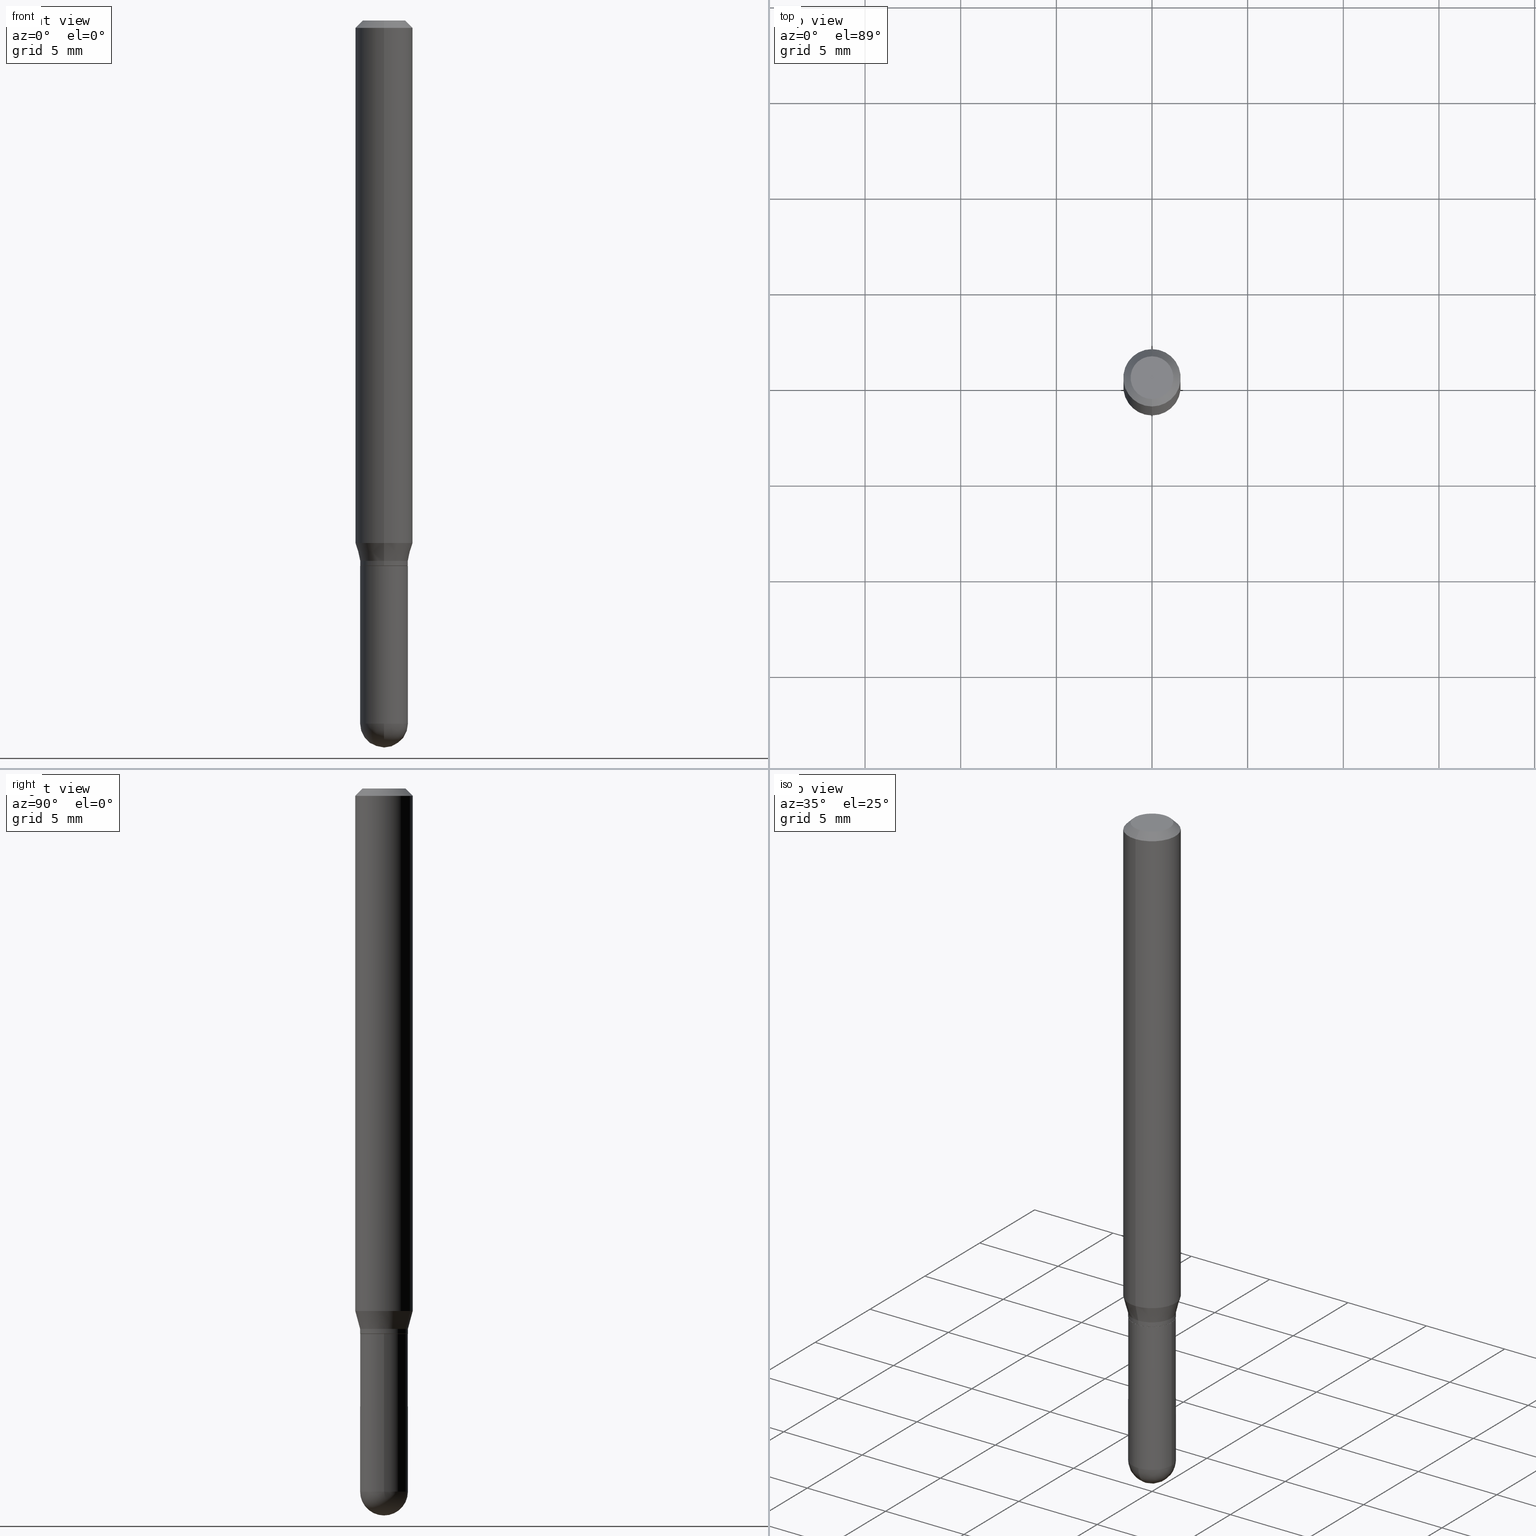
[diagram: canonical four-view strip — front | top / right | iso, engineering-drawing reading convention]
A machine part, canonical four-view strip (front | top / right | iso — engineering-drawing reading convention). The complete STEP part file that produces these views, byte-faithful:
ISO-10303-21;
HEADER;
FILE_DESCRIPTION (( 'STEP AP203' ),
    '1' );
FILE_NAME ('40318.STEP',
    '2024-03-08T12:58:22',
    ( '' ),
    ( '' ),
    'SwSTEP 2.0',
    'SolidWorks 2023',
    '' );
FILE_SCHEMA (( 'CONFIG_CONTROL_DESIGN' ));
ENDSEC;

DATA;
#1 = ORIENTED_EDGE ( 'NONE', *, *, #187, .F. ) ;
#2 = ORIENTED_EDGE ( 'NONE', *, *, #4, .T. ) ;
#3 = ORIENTED_EDGE ( 'NONE', *, *, #192, .F. ) ;
#4 = EDGE_CURVE ( 'NONE', #374, #35, #450, .T. ) ;
#5 = CONICAL_SURFACE ( 'NONE', #440, 0.04920000000000020191, 0.2617993877991497964 ) ;
#6 = DIRECTION ( 'NONE',  ( -6.982962677686265922E-15, -1.000000000000000000, 5.552536572488332275E-15 ) ) ;
#7 = CARTESIAN_POINT ( 'NONE',  ( 4.195754854663657226E-16, 0.05904999999999996363, -0.01500000000000016945 ) ) ;
#8 = DIRECTION ( 'NONE',  ( -2.445597689744413996E-29, 3.491296770250663651E-15, 1.000000000000000000 ) ) ;
#9 = EDGE_CURVE ( 'NONE', #389, #465, #79, .T. ) ;
#10 = CARTESIAN_POINT ( 'NONE',  ( 2.719749190764762494E-29, -3.882671138195762531E-15, -1.112099999999999866 ) ) ;
#11 = PERSON_AND_ORGANIZATION_ROLE ( 'creator' ) ;
#12 = AXIS2_PLACEMENT_3D ( 'NONE', #121, #85, #6 ) ;
#13 = CARTESIAN_POINT ( 'NONE',  ( 3.495870259940048443E-16, 0.04919999999999498386, -1.446900000000000075 ) ) ;
#14 = CIRCLE ( 'NONE', #370, 0.05904999999999999832 ) ;
#15 = ADVANCED_FACE ( 'NONE', ( #469 ), #345, .T. ) ;
#16 = DIRECTION ( 'NONE',  ( -2.445597689744413996E-29, 3.491296770250663651E-15, 1.000000000000000000 ) ) ;
#17 = CIRCLE ( 'NONE', #277, 0.04920000000000000068 ) ;
#18 =( GEOMETRIC_REPRESENTATION_CONTEXT ( 3 ) GLOBAL_UNCERTAINTY_ASSIGNED_CONTEXT ( ( #455 ) ) GLOBAL_UNIT_ASSIGNED_CONTEXT ( ( #367, #105, #205 ) ) REPRESENTATION_CONTEXT ( 'NONE', 'WORKASPACE' ) );
#19 = DIRECTION ( 'NONE',  ( -2.445468806185136597E-29, 3.491481338843145583E-15, 1.000000000000000000 ) ) ;
#20 = LINE ( 'NONE', #282, #357 ) ;
#21 = APPLICATION_CONTEXT ( 'configuration controlled 3d designs of mechanical parts and assemblies' ) ;
#22 = EDGE_CURVE ( 'NONE', #445, #223, #209, .T. ) ;
#23 = COORDINATED_UNIVERSAL_TIME_OFFSET ( 5, 0, .BEHIND. ) ;
#24 = CARTESIAN_POINT ( 'NONE',  ( 2.719749190764762494E-29, -3.882671138195762531E-15, -1.112099999999999866 ) ) ;
#25 = CLOSED_SHELL ( 'NONE', ( #394, #242, #504, #95, #42 ) ) ;
#26 = AXIS2_PLACEMENT_3D ( 'NONE', #24, #241, #122 ) ;
#27 = EDGE_CURVE ( 'NONE', #35, #374, #14, .T. ) ;
#28 = ORIENTED_EDGE ( 'NONE', *, *, #163, .F. ) ;
#29 = CARTESIAN_POINT ( 'NONE',  ( 0.000000000000000000, 0.000000000000000000, 0.000000000000000000 ) ) ;
#30 = ORIENTED_EDGE ( 'NONE', *, *, #202, .T. ) ;
#31 = ORIENTED_EDGE ( 'NONE', *, *, #484, .F. ) ;
#32 = CYLINDRICAL_SURFACE ( 'NONE', #439, 0.04920000000000000068 ) ;
#33 = DIRECTION ( 'NONE',  ( -1.000000000000000000, 6.982962677686265922E-15, -4.876176775795935793E-29 ) ) ;
#34 = CC_DESIGN_APPROVAL ( #412, ( #182 ) ) ;
#35 = VERTEX_POINT ( 'NONE', #190 ) ;
#36 = CIRCLE ( 'NONE', #379, 0.04920000000000020191 ) ;
#37 = DIRECTION ( 'NONE',  ( -2.445468806185136877E-29, 3.491481338843145188E-15, 1.000000000000000000 ) ) ;
#38 = DATE_TIME_ROLE ( 'creation_date' ) ;
#39 = ORIENTED_EDGE ( 'NONE', *, *, #434, .F. ) ;
#40 = VERTEX_POINT ( 'NONE', #350 ) ;
#41 = VERTEX_POINT ( 'NONE', #7 ) ;
#42 = ADVANCED_FACE ( 'NONE', ( #150 ), #275, .T. ) ;
#43 = DIRECTION ( 'NONE',  ( -2.445597689744413996E-29, 3.491296770250663651E-15, 1.000000000000000000 ) ) ;
#44 = DIRECTION ( 'NONE',  ( -6.982962677686265922E-15, -1.000000000000000000, 4.626330217890369336E-15 ) ) ;
#45 = VECTOR ( 'NONE', #487, 39.37007874015748143 ) ;
#46 = CC_DESIGN_PERSON_AND_ORGANIZATION_ASSIGNMENT ( #475, #87, ( #451 ) ) ;
#47 = DIRECTION ( 'NONE',  ( -6.982962677686266711E-15, -1.000000000000000000, 2.804772067417108113E-15 ) ) ;
#48 = DATE_AND_TIME ( #387, #404 ) ;
#49 = DIRECTION ( 'NONE',  ( -2.445597689744414276E-29, 3.491296770250663257E-15, 1.000000000000000000 ) ) ;
#50 = DIRECTION ( 'NONE',  ( -2.445597689744414276E-29, 3.491296770250663257E-15, 1.000000000000000000 ) ) ;
#51 = DIRECTION ( 'NONE',  ( -4.851104656540965064E-15, -0.7071067811865501263, -0.7071067811865449082 ) ) ;
#52 = CIRCLE ( 'NONE', #26, 0.04920000000000020191 ) ;
#53 = DATE_AND_TIME ( #89, #318 ) ;
#54 = CALENDAR_DATE ( 2024, 8, 3 ) ;
#55 = SHAPE_DEFINITION_REPRESENTATION ( #107, #410 ) ;
#56 = CYLINDRICAL_SURFACE ( 'NONE', #314, 0.04920000000000013946 ) ;
#57 = VECTOR ( 'NONE', #133, 39.37007874015748143 ) ;
#58 = DATE_AND_TIME ( #54, #297 ) ;
#59 = FACE_OUTER_BOUND ( 'NONE', #265, .T. ) ;
#60 = LINE ( 'NONE', #322, #471 ) ;
#61 = DIRECTION ( 'NONE',  ( -6.982962677686265922E-15, -1.000000000000000000, 3.491296770250664046E-15 ) ) ;
#62 = EDGE_CURVE ( 'NONE', #40, #269, #252, .T. ) ;
#63 = CIRCLE ( 'NONE', #114, 0.04870000000000000023 ) ;
#64 = LINE ( 'NONE', #338, #362 ) ;
#65 = LINE ( 'NONE', #177, #393 ) ;
#66 = ORIENTED_EDGE ( 'NONE', *, *, #128, .T. ) ;
#67 = ORIENTED_EDGE ( 'NONE', *, *, #366, .F. ) ;
#68 = ADVANCED_FACE ( 'NONE', ( #169 ), #268, .T. ) ;
#69 = ORIENTED_EDGE ( 'NONE', *, *, #490, .T. ) ;
#70 = EDGE_LOOP ( 'NONE', ( #226, #326, #303, #181 ) ) ;
#71 = FACE_OUTER_BOUND ( 'NONE', #453, .T. ) ;
#72 = PERSON_AND_ORGANIZATION ( #194, #348 ) ;
#73 = ORIENTED_EDGE ( 'NONE', *, *, #92, .F. ) ;
#74 = LOCAL_TIME ( 7, 58, 22.00000000000000000, #23 ) ;
#75 = ORIENTED_EDGE ( 'NONE', *, *, #211, .T. ) ;
#76 = AXIS2_PLACEMENT_3D ( 'NONE', #151, #43, #274 ) ;
#77 = EDGE_LOOP ( 'NONE', ( #28, #328, #134, #189 ) ) ;
#78 = VERTEX_POINT ( 'NONE', #135 ) ;
#79 = LINE ( 'NONE', #113, #99 ) ;
#80 = EDGE_CURVE ( 'NONE', #333, #465, #17, .T. ) ;
#81 = AXIS2_PLACEMENT_3D ( 'NONE', #171, #507, #98 ) ;
#82 = APPROVAL_PERSON_ORGANIZATION ( #281, #247, #244 ) ;
#83 = FACE_OUTER_BOUND ( 'NONE', #272, .T. ) ;
#84 = EDGE_CURVE ( 'NONE', #35, #108, #20, .T. ) ;
#85 = DIRECTION ( 'NONE',  ( 1.000000000000000000, -6.982962677686265922E-15, 4.883557194083112340E-29 ) ) ;
#86 = CARTESIAN_POINT ( 'NONE',  ( 2.742982368817334401E-29, -3.915838457513144026E-15, -1.121599999999999930 ) ) ;
#87 = PERSON_AND_ORGANIZATION_ROLE ( 'design_supplier' ) ;
#88 = CARTESIAN_POINT ( 'NONE',  ( -3.435617637421385410E-16, -0.04920000000000408769, -1.112099999999999644 ) ) ;
#89 = CALENDAR_DATE ( 2024, 8, 3 ) ;
#90 = AXIS2_PLACEMENT_3D ( 'NONE', #346, #478, #472 ) ;
#91 = CARTESIAN_POINT ( 'NONE',  ( 2.744205167662206488E-29, -3.917584105898268911E-15, -1.122099999999999875 ) ) ;
#92 = EDGE_CURVE ( 'NONE', #215, #501, #52, .T. ) ;
#93 = CARTESIAN_POINT ( 'NONE',  ( 2.742982368817334401E-29, -3.915838457513144026E-15, -1.121599999999999930 ) ) ;
#94 = AXIS2_PLACEMENT_3D ( 'NONE', #155, #8, #276 ) ;
#95 = ADVANCED_FACE ( 'NONE', ( #438 ), #483, .T. ) ;
#96 = CYLINDRICAL_SURFACE ( 'NONE', #400, 0.05905000000000000526 ) ;
#97 = DIRECTION ( 'NONE',  ( -2.445468806185136597E-29, 3.491481338843145583E-15, 1.000000000000000000 ) ) ;
#98 = DIRECTION ( 'NONE',  ( 6.982962677686265922E-15, 1.000000000000000000, -3.505890868245044514E-15 ) ) ;
#99 = VECTOR ( 'NONE', #426, 39.37007874015748143 ) ;
#100 = AXIS2_PLACEMENT_3D ( 'NONE', #291, #243, #485 ) ;
#101 = AXIS2_PLACEMENT_3D ( 'NONE', #221, #382, #408 ) ;
#102 = ORIENTED_EDGE ( 'NONE', *, *, #22, .T. ) ;
#103 = EDGE_LOOP ( 'NONE', ( #390, #69, #468, #372 ) ) ;
#104 = ORIENTED_EDGE ( 'NONE', *, *, #62, .T. ) ;
#105 =( NAMED_UNIT ( * ) PLANE_ANGLE_UNIT ( ) SI_UNIT ( $, .RADIAN. ) );
#106 = DIRECTION ( 'NONE',  ( -6.982962677686265133E-15, -1.000000000000000000, 3.491296770250663257E-15 ) ) ;
#107 = PRODUCT_DEFINITION_SHAPE ( 'NONE', 'NONE',  #182 ) ;
#108 = VERTEX_POINT ( 'NONE', #197 ) ;
#109 = APPROVAL_ROLE ( '' ) ;
#110 = ADVANCED_FACE ( 'NONE', ( #319 ), #437, .F. ) ;
#111 = ORIENTED_EDGE ( 'NONE', *, *, #500, .T. ) ;
#112 = LINE ( 'NONE', #360, #253 ) ;
#113 = CARTESIAN_POINT ( 'NONE',  ( 0.04920000000000000068, -3.435617637421643269E-16, 2.399078973691600472E-30 ) ) ;
#114 = AXIS2_PLACEMENT_3D ( 'NONE', #232, #395, #47 ) ;
#115 = COORDINATED_UNIVERSAL_TIME_OFFSET ( 5, 0, .BEHIND. ) ;
#116 = CC_DESIGN_DATE_AND_TIME_ASSIGNMENT ( #58, #405, ( #383 ) ) ;
#117 = ORIENTED_EDGE ( 'NONE', *, *, #203, .T. ) ;
#118 = DIRECTION ( 'NONE',  ( 1.000000000000000000, -7.105427357601001070E-15, 4.926315508542082329E-29 ) ) ;
#119 = ADVANCED_FACE ( 'NONE', ( #127 ), #5, .T. ) ;
#120 = CC_DESIGN_APPROVAL ( #247, ( #383 ) ) ;
#121 = CARTESIAN_POINT ( 'NONE',  ( 3.534141397526511158E-29, -5.057849611423951529E-15, -1.446899999999999853 ) ) ;
#122 = DIRECTION ( 'NONE',  ( -6.982962677686265922E-15, -1.000000000000000000, 2.776268286244158643E-15 ) ) ;
#123 = CARTESIAN_POINT ( 'NONE',  ( 3.599717260347272986E-16, 0.04405000000000000582, -1.157268264087792493E-16 ) ) ;
#124 = DATE_AND_TIME ( #396, #142 ) ;
#125 = AXIS2_PLACEMENT_3D ( 'NONE', #266, #491, #447 ) ;
#126 = DIRECTION ( 'NONE',  ( -2.445468806185136597E-29, 3.491481338843145583E-15, 1.000000000000000000 ) ) ;
#127 = FACE_OUTER_BOUND ( 'NONE', #305, .T. ) ;
#128 = EDGE_CURVE ( 'NONE', #421, #459, #63, .T. ) ;
#129 = CARTESIAN_POINT ( 'NONE',  ( 3.534141397526511158E-29, -5.057849611423951529E-15, -1.446899999999999853 ) ) ;
#130 = DIRECTION ( 'NONE',  ( -2.445468806185136597E-29, 3.491481338843145583E-15, 1.000000000000000000 ) ) ;
#131 = CONICAL_SURFACE ( 'NONE', #94, 0.04870000000000000023, 0.7853981633974739252 ) ;
#132 = DIRECTION ( 'NONE',  ( -6.982962677686266711E-15, -1.000000000000000000, 2.804772067417108113E-15 ) ) ;
#133 = DIRECTION ( 'NONE',  ( -2.445597689744414276E-29, 3.491296770250663257E-15, 1.000000000000000000 ) ) ;
#134 = ORIENTED_EDGE ( 'NONE', *, *, #192, .T. ) ;
#135 = CARTESIAN_POINT ( 'NONE',  ( -3.435617637421291240E-16, -0.04920000000000508689, -1.446899999999999631 ) ) ;
#136 = CARTESIAN_POINT ( 'NONE',  ( -3.400702824032937589E-16, -0.04870000000000392071, -1.122099999999999653 ) ) ;
#137 = LINE ( 'NONE', #258, #57 ) ;
#138 = ORIENTED_EDGE ( 'NONE', *, *, #510, .F. ) ;
#139 = ORIENTED_EDGE ( 'NONE', *, *, #9, .F. ) ;
#140 = CARTESIAN_POINT ( 'NONE',  ( 2.719749190764762494E-29, -3.882671138195762531E-15, -1.112099999999999866 ) ) ;
#141 = EDGE_LOOP ( 'NONE', ( #290, #299 ) ) ;
#142 = LOCAL_TIME ( 7, 58, 22.00000000000000000, #307 ) ;
#143 = EDGE_LOOP ( 'NONE', ( #457, #227, #429, #385, #448 ) ) ;
#144 = ORIENTED_EDGE ( 'NONE', *, *, #211, .F. ) ;
#145 = ORIENTED_EDGE ( 'NONE', *, *, #342, .T. ) ;
#146 = ORIENTED_EDGE ( 'NONE', *, *, #434, .T. ) ;
#147 = ORIENTED_EDGE ( 'NONE', *, *, #166, .T. ) ;
#148 = AXIS2_PLACEMENT_3D ( 'NONE', #312, #436, #270 ) ;
#149 = LINE ( 'NONE', #397, #464 ) ;
#150 = FACE_OUTER_BOUND ( 'NONE', #143, .T. ) ;
#151 = CARTESIAN_POINT ( 'NONE',  ( 2.719749190764762494E-29, -3.882671138195762531E-15, -1.112099999999999866 ) ) ;
#152 = ADVANCED_FACE ( 'NONE', ( #323 ), #56, .T. ) ;
#153 = CARTESIAN_POINT ( 'NONE',  ( 0.000000000000000000, 0.000000000000000000, 0.000000000000000000 ) ) ;
#154 = CC_DESIGN_PERSON_AND_ORGANIZATION_ASSIGNMENT ( #354, #11, ( #451 ) ) ;
#155 = CARTESIAN_POINT ( 'NONE',  ( 2.744205167662206488E-29, -3.917584105898268911E-15, -1.122099999999999875 ) ) ;
#156 = DIRECTION ( 'NONE',  ( 5.024295867788190974E-15, 0.7071067811865681119, 0.7071067811865270336 ) ) ;
#157 = CIRCLE ( 'NONE', #200, 0.04920000000000000068 ) ;
#158 = SPHERICAL_SURFACE ( 'NONE', #12, 0.04920000000000007007 ) ;
#159 = PERSON_AND_ORGANIZATION_ROLE ( 'creator' ) ;
#160 = APPROVAL_STATUS ( 'not_yet_approved' ) ;
#161 = AXIS2_PLACEMENT_3D ( 'NONE', #93, #16, #368 ) ;
#162 = AXIS2_PLACEMENT_3D ( 'NONE', #129, #418, #381 ) ;
#163 = EDGE_CURVE ( 'NONE', #459, #269, #443, .T. ) ;
#164 = CARTESIAN_POINT ( 'NONE',  ( 2.744060547420341208E-29, -3.917791210315892926E-15, -1.122099999999999875 ) ) ;
#165 = DIRECTION ( 'NONE',  ( -6.982962677686265922E-15, -1.000000000000000000, 2.776268286244158643E-15 ) ) ;
#166 = EDGE_CURVE ( 'NONE', #269, #40, #403, .T. ) ;
#167 = CARTESIAN_POINT ( 'NONE',  ( -3.400702824032937589E-16, -0.04870000000000392071, -1.122099999999999653 ) ) ;
#168 = APPROVAL_DATE_TIME ( #361, #247 ) ;
#169 = FACE_OUTER_BOUND ( 'NONE', #77, .T. ) ;
#170 = CIRCLE ( 'NONE', #125, 0.04920000000000000068 ) ;
#171 = CARTESIAN_POINT ( 'NONE',  ( 3.668396534616611833E-31, -5.236945155375981672E-17, -0.01499999999999996128 ) ) ;
#172 = PERSON_AND_ORGANIZATION ( #194, #348 ) ;
#173 = EDGE_LOOP ( 'NONE', ( #104, #415, #73, #380 ) ) ;
#174 = ORIENTED_EDGE ( 'NONE', *, *, #62, .F. ) ;
#175 = DIMENSIONAL_EXPONENTS ( 1.000000000000000000, 0.000000000000000000, 0.000000000000000000, 0.000000000000000000, 0.000000000000000000, 0.000000000000000000, 0.000000000000000000 ) ;
#176 = CARTESIAN_POINT ( 'NONE',  ( 0.000000000000000000, 0.000000000000000000, 0.000000000000000000 ) ) ;
#177 = CARTESIAN_POINT ( 'NONE',  ( -3.435617637421385410E-16, -0.04920000000000408769, -1.112099999999999644 ) ) ;
#178 = AXIS2_PLACEMENT_3D ( 'NONE', #29, #246, #407 ) ;
#179 = CARTESIAN_POINT ( 'NONE',  ( -9.309117794264846291E-46, 1.328955004549274843E-31, 3.806479632076250738E-17 ) ) ;
#180 = AXIS2_PLACEMENT_3D ( 'NONE', #497, #301, #132 ) ;
#181 = ORIENTED_EDGE ( 'NONE', *, *, #4, .F. ) ;
#182 = PRODUCT_DEFINITION ( 'UNKNOWN', '', #451, #294 ) ;
#183 = PERSON_AND_ORGANIZATION ( #194, #348 ) ;
#184 = VERTEX_POINT ( 'NONE', #235 ) ;
#185 = ADVANCED_FACE ( 'NONE', ( #59 ), #96, .T. ) ;
#186 = ORIENTED_EDGE ( 'NONE', *, *, #420, .T. ) ;
#187 = EDGE_CURVE ( 'NONE', #465, #333, #238, .T. ) ;
#188 = ORIENTED_EDGE ( 'NONE', *, *, #92, .T. ) ;
#189 = ORIENTED_EDGE ( 'NONE', *, *, #166, .F. ) ;
#190 = CARTESIAN_POINT ( 'NONE',  ( -4.123439461173478031E-16, -0.05905000000000376614, -1.075339299545447158 ) ) ;
#191 = AXIS2_PLACEMENT_3D ( 'NONE', #304, #369, #330 ) ;
#192 = EDGE_CURVE ( 'NONE', #421, #40, #365, .T. ) ;
#193 = DIRECTION ( 'NONE',  ( -6.982962677686265133E-15, -1.000000000000000000, 3.491296770250663257E-15 ) ) ;
#194 = PERSON ( 'UNSPECIFIED', 'UNSPECIFIED', 'UNSPECIFIED', ('UNSPECIFIED'), ('UNSPECIFIED'), ('UNSPECIFIED') ) ;
#195 = DIRECTION ( 'NONE',  ( -2.445597689744413996E-29, 3.491296770250663651E-15, 1.000000000000000000 ) ) ;
#196 = APPROVAL_DATE_TIME ( #48, #332 ) ;
#197 = CARTESIAN_POINT ( 'NONE',  ( -4.123439461173737369E-16, -0.05905000000000006771, -0.01499999999999975485 ) ) ;
#198 = LINE ( 'NONE', #428, #347 ) ;
#199 = CALENDAR_DATE ( 2024, 8, 3 ) ;
#200 = AXIS2_PLACEMENT_3D ( 'NONE', #386, #245, #398 ) ;
#201 = AXIS2_PLACEMENT_3D ( 'NONE', #91, #327, #493 ) ;
#202 = EDGE_CURVE ( 'NONE', #445, #78, #222, .T. ) ;
#203 = EDGE_CURVE ( 'NONE', #212, #41, #112, .T. ) ;
#204 = DIRECTION ( 'NONE',  ( -2.445597689744413996E-29, 3.491296770250663651E-15, 1.000000000000000000 ) ) ;
#205 =( NAMED_UNIT ( * ) SI_UNIT ( $, .STERADIAN. ) SOLID_ANGLE_UNIT ( ) );
#206 = DIRECTION ( 'NONE',  ( -6.982962677686265133E-15, -1.000000000000000000, 2.776268286244166532E-15 ) ) ;
#207 = PRODUCT ( '40318', '40318', '', ( #503 ) ) ;
#208 = DIRECTION ( 'NONE',  ( 1.000000000000000000, -6.982962677686266711E-15, 4.876176775795935793E-29 ) ) ;
#209 = CIRCLE ( 'NONE', #435, 0.04920000000000007007 ) ;
#210 = CIRCLE ( 'NONE', #180, 0.04870000000000000023 ) ;
#211 = EDGE_CURVE ( 'NONE', #41, #108, #284, .T. ) ;
#212 = VERTEX_POINT ( 'NONE', #123 ) ;
#213 = DIRECTION ( 'NONE',  ( -6.982962677686265922E-15, -1.000000000000000000, 2.776268286244158643E-15 ) ) ;
#214 = PLANE ( 'NONE',  #239 ) ;
#215 = VERTEX_POINT ( 'NONE', #88 ) ;
#216 = ORIENTED_EDGE ( 'NONE', *, *, #315, .F. ) ;
#217 = CARTESIAN_POINT ( 'NONE',  ( -0.04920000000000000068, 3.495870259939692963E-16, -2.420116064405413767E-30 ) ) ;
#218 = APPLICATION_PROTOCOL_DEFINITION ( 'international standard', 'config_control_design', 1994, #467 ) ;
#219 = CC_DESIGN_APPROVAL ( #332, ( #451 ) ) ;
#220 = ORIENTED_EDGE ( 'NONE', *, *, #263, .F. ) ;
#221 = CARTESIAN_POINT ( 'NONE',  ( 2.744205167662206488E-29, -3.917584105898268911E-15, -1.122099999999999875 ) ) ;
#222 = CIRCLE ( 'NONE', #162, 0.04920000000000007007 ) ;
#223 = VERTEX_POINT ( 'NONE', #13 ) ;
#224 = DIRECTION ( 'NONE',  ( 1.000000000000000000, -6.982962677686266711E-15, 4.876176775795935793E-29 ) ) ;
#225 = COORDINATED_UNIVERSAL_TIME_OFFSET ( 5, 0, .BEHIND. ) ;
#226 = ORIENTED_EDGE ( 'NONE', *, *, #342, .F. ) ;
#227 = ORIENTED_EDGE ( 'NONE', *, *, #331, .T. ) ;
#228 = DIRECTION ( 'NONE',  ( 7.105427357601001070E-15, 1.000000000000000000, 0.000000000000000000 ) ) ;
#229 = CARTESIAN_POINT ( 'NONE',  ( 0.000000000000000000, 0.000000000000000000, 0.000000000000000000 ) ) ;
#230 = AXIS2_PLACEMENT_3D ( 'NONE', #86, #474, #206 ) ;
#231 = CIRCLE ( 'NONE', #191, 0.05905000000000001914 ) ;
#232 = CARTESIAN_POINT ( 'NONE',  ( 2.744205167662206488E-29, -3.917584105898268911E-15, -1.122099999999999875 ) ) ;
#233 = APPROVAL_STATUS ( 'not_yet_approved' ) ;
#234 = DIRECTION ( 'NONE',  ( 4.937700262164548831E-15, 0.7071067811865452413, -0.7071067811865497932 ) ) ;
#235 = CARTESIAN_POINT ( 'NONE',  ( -0.04920000000000000068, -4.135220753750050718E-15, -1.446899999999999853 ) ) ;
#236 = SECURITY_CLASSIFICATION_LEVEL ( 'unclassified' ) ;
#237 = FACE_OUTER_BOUND ( 'NONE', #499, .T. ) ;
#238 = CIRCLE ( 'NONE', #279, 0.04920000000000000068 ) ;
#239 = AXIS2_PLACEMENT_3D ( 'NONE', #486, #414, #33 ) ;
#240 = AXIS2_PLACEMENT_3D ( 'NONE', #460, #289, #295 ) ;
#241 = DIRECTION ( 'NONE',  ( -2.445597689744413996E-29, 3.491296770250663651E-15, 1.000000000000000000 ) ) ;
#242 = ADVANCED_FACE ( 'NONE', ( #237 ), #158, .T. ) ;
#243 = DIRECTION ( 'NONE',  ( 1.000000000000000000, -6.982962677686265922E-15, 4.883557194083112340E-29 ) ) ;
#244 = APPROVAL_ROLE ( '' ) ;
#245 = DIRECTION ( 'NONE',  ( -2.445468806185136597E-29, 3.491481338843145583E-15, 1.000000000000000000 ) ) ;
#246 = DIRECTION ( 'NONE',  ( 0.000000000000000000, 0.000000000000000000, 1.000000000000000000 ) ) ;
#247 = APPROVAL ( #160, 'UNSPECIFIED' ) ;
#248 = ORIENTED_EDGE ( 'NONE', *, *, #27, .F. ) ;
#249 = PLANE ( 'NONE',  #101 ) ;
#250 = LINE ( 'NONE', #217, #506 ) ;
#251 = CARTESIAN_POINT ( 'NONE',  ( 3.845812557301816843E-16, 0.04919999999999632306, -1.112100000000000088 ) ) ;
#252 = CIRCLE ( 'NONE', #161, 0.04920000000000006313 ) ;
#253 = VECTOR ( 'NONE', #234, 39.37007874015748143 ) ;
#254 = ORIENTED_EDGE ( 'NONE', *, *, #352, .T. ) ;
#255 = AXIS2_PLACEMENT_3D ( 'NONE', #340, #130, #302 ) ;
#256 = ORIENTED_EDGE ( 'NONE', *, *, #128, .F. ) ;
#257 = CARTESIAN_POINT ( 'NONE',  ( 3.668396534616611833E-31, -5.236945155375981672E-17, -0.01499999999999996128 ) ) ;
#258 = CARTESIAN_POINT ( 'NONE',  ( -3.435617637421652144E-16, -0.04920000000000013946, 1.717718010963331248E-16 ) ) ;
#259 = ORIENTED_EDGE ( 'NONE', *, *, #331, .F. ) ;
#260 = ORIENTED_EDGE ( 'NONE', *, *, #384, .F. ) ;
#261 = EDGE_CURVE ( 'NONE', #269, #501, #149, .T. ) ;
#262 = CARTESIAN_POINT ( 'NONE',  ( 3.538348815669273817E-29, -5.051824349172146609E-15, -1.446899999999999853 ) ) ;
#263 = EDGE_CURVE ( 'NONE', #306, #108, #198, .T. ) ;
#264 = FACE_OUTER_BOUND ( 'NONE', #339, .T. ) ;
#265 = EDGE_LOOP ( 'NONE', ( #293, #2, #505, #144 ) ) ;
#266 = CARTESIAN_POINT ( 'NONE',  ( 3.538348815669273817E-29, -5.051824349172146609E-15, -1.446899999999999853 ) ) ;
#267 = CLOSED_SHELL ( 'NONE', ( #298, #300, #308, #15, #119, #271, #185, #321, #110, #477, #68, #152 ) ) ;
#268 = CONICAL_SURFACE ( 'NONE', #201, 0.04870000000000000023, 0.7853981633974739252 ) ;
#269 = VERTEX_POINT ( 'NONE', #311 ) ;
#270 = DIRECTION ( 'NONE',  ( -6.982962677686265922E-15, -1.000000000000000000, 3.491296770250664046E-15 ) ) ;
#271 = ADVANCED_FACE ( 'NONE', ( #466 ), #324, .T. ) ;
#272 = EDGE_LOOP ( 'NONE', ( #39, #462, #186, #343 ) ) ;
#273 = CARTESIAN_POINT ( 'NONE',  ( 2.629847306659722038E-29, -3.754328623426630986E-15, -1.075339299545447158 ) ) ;
#274 = DIRECTION ( 'NONE',  ( -6.982962677686265922E-15, -1.000000000000000000, 2.776268286244158643E-15 ) ) ;
#275 = CYLINDRICAL_SURFACE ( 'NONE', #392, 0.04920000000000000068 ) ;
#276 = DIRECTION ( 'NONE',  ( -6.982962677686266711E-15, -1.000000000000000000, 2.804772067417108113E-15 ) ) ;
#277 = AXIS2_PLACEMENT_3D ( 'NONE', #164, #402, #406 ) ;
#278 = DIRECTION ( 'NONE',  ( 6.982962677686265922E-15, 1.000000000000000000, -3.491296770250663257E-15 ) ) ;
#279 = AXIS2_PLACEMENT_3D ( 'NONE', #363, #19, #283 ) ;
#280 = AXIS2_PLACEMENT_3D ( 'NONE', #446, #316, #278 ) ;
#281 = PERSON_AND_ORGANIZATION ( #194, #348 ) ;
#282 = CARTESIAN_POINT ( 'NONE',  ( -4.123439461173740327E-16, -0.05905000000000000526, 2.061610742833017337E-16 ) ) ;
#283 = DIRECTION ( 'NONE',  ( 1.000000000000000000, -6.982962677686261977E-15, 0.000000000000000000 ) ) ;
#284 = CIRCLE ( 'NONE', #90, 0.05905000000000001914 ) ;
#285 = LENGTH_MEASURE_WITH_UNIT ( LENGTH_MEASURE( 0.02539999999999999897 ), #492 );
#286 = AXIS2_PLACEMENT_3D ( 'NONE', #179, #458, #106 ) ;
#287 = CARTESIAN_POINT ( 'NONE',  ( 0.000000000000000000, 0.000000000000000000, 0.000000000000000000 ) ) ;
#288 = PERSON_AND_ORGANIZATION_ROLE ( 'classification_officer' ) ;
#289 = DIRECTION ( 'NONE',  ( -2.445597689744413996E-29, 3.491296770250663651E-15, 1.000000000000000000 ) ) ;
#290 = ORIENTED_EDGE ( 'NONE', *, *, #187, .T. ) ;
#291 = CARTESIAN_POINT ( 'NONE',  ( 3.534141397526511158E-29, -5.057849611423951529E-15, -1.446899999999999853 ) ) ;
#292 = CARTESIAN_POINT ( 'NONE',  ( -0.04920000000000000068, -4.135220753750050718E-15, -1.122099999999999875 ) ) ;
#293 = ORIENTED_EDGE ( 'NONE', *, *, #490, .F. ) ;
#294 = DESIGN_CONTEXT ( 'detailed design', #467, 'design' ) ;
#295 = DIRECTION ( 'NONE',  ( -6.982962677686265133E-15, -1.000000000000000000, 3.491296770250663257E-15 ) ) ;
#296 = ORIENTED_EDGE ( 'NONE', *, *, #366, .T. ) ;
#297 = LOCAL_TIME ( 7, 58, 22.00000000000000000, #495 ) ;
#298 = ADVANCED_FACE ( 'NONE', ( #355 ), #430, .T. ) ;
#299 = ORIENTED_EDGE ( 'NONE', *, *, #80, .T. ) ;
#300 = ADVANCED_FACE ( 'NONE', ( #349 ), #131, .T. ) ;
#301 = DIRECTION ( 'NONE',  ( -2.445597689744413996E-29, 3.491296770250663651E-15, 1.000000000000000000 ) ) ;
#302 = DIRECTION ( 'NONE',  ( 1.000000000000000000, -6.982962677686261977E-15, 0.000000000000000000 ) ) ;
#303 = ORIENTED_EDGE ( 'NONE', *, *, #511, .T. ) ;
#304 = CARTESIAN_POINT ( 'NONE',  ( 3.668396534616611833E-31, -5.236945155375981672E-17, -0.01499999999999996128 ) ) ;
#305 = EDGE_LOOP ( 'NONE', ( #188, #145, #248, #329 ) ) ;
#306 = VERTEX_POINT ( 'NONE', #432 ) ;
#307 = COORDINATED_UNIVERSAL_TIME_OFFSET ( 5, 0, .BEHIND. ) ;
#308 = ADVANCED_FACE ( 'NONE', ( #83 ), #409, .T. ) ;
#309 = EDGE_LOOP ( 'NONE', ( #341, #254, #1, #139, #512 ) ) ;
#310 = EDGE_LOOP ( 'NONE', ( #449, #147, #111, #260 ) ) ;
#311 = CARTESIAN_POINT ( 'NONE',  ( 3.495870259939968571E-16, 0.04919999999999610796, -1.121599999999999930 ) ) ;
#312 = CARTESIAN_POINT ( 'NONE',  ( 0.000000000000000000, 0.000000000000000000, 0.000000000000000000 ) ) ;
#313 = CIRCLE ( 'NONE', #255, 0.04920000000000000068 ) ;
#314 = AXIS2_PLACEMENT_3D ( 'NONE', #287, #204, #433 ) ;
#315 = EDGE_CURVE ( 'NONE', #459, #421, #210, .T. ) ;
#316 = DIRECTION ( 'NONE',  ( 2.445597689744413996E-29, -3.491296770250663257E-15, -1.000000000000000000 ) ) ;
#317 = AXIS2_PLACEMENT_3D ( 'NONE', #229, #351, #193 ) ;
#318 = LOCAL_TIME ( 7, 58, 22.00000000000000000, #225 ) ;
#319 = FACE_OUTER_BOUND ( 'NONE', #508, .T. ) ;
#320 = DIRECTION ( 'NONE',  ( -2.445597689744413996E-29, 3.491296770250663651E-15, 1.000000000000000000 ) ) ;
#321 = ADVANCED_FACE ( 'NONE', ( #71 ), #425, .T. ) ;
#322 = CARTESIAN_POINT ( 'NONE',  ( 4.195754854663391478E-16, 0.05905000000000000526, -2.061610742833017337E-16 ) ) ;
#323 = FACE_OUTER_BOUND ( 'NONE', #310, .T. ) ;
#324 = CONICAL_SURFACE ( 'NONE', #76, 0.04920000000000020191, 0.2617993877991497964 ) ;
#325 = FACE_OUTER_BOUND ( 'NONE', #141, .T. ) ;
#326 = ORIENTED_EDGE ( 'NONE', *, *, #384, .T. ) ;
#327 = DIRECTION ( 'NONE',  ( -2.445597689744413996E-29, 3.491296770250663651E-15, 1.000000000000000000 ) ) ;
#328 = ORIENTED_EDGE ( 'NONE', *, *, #315, .T. ) ;
#329 = ORIENTED_EDGE ( 'NONE', *, *, #511, .F. ) ;
#330 = DIRECTION ( 'NONE',  ( -6.982962677686265922E-15, -1.000000000000000000, 3.505890868245044514E-15 ) ) ;
#331 = EDGE_CURVE ( 'NONE', #184, #78, #170, .T. ) ;
#332 = APPROVAL ( #461, 'UNSPECIFIED' ) ;
#333 = VERTEX_POINT ( 'NONE', #292 ) ;
#334 = APPROVAL_PERSON_ORGANIZATION ( #183, #332, #109 ) ;
#335 = DIRECTION ( 'NONE',  ( -1.807323732225326984E-15, -0.2588190451025177419, 0.9659258262890690894 ) ) ;
#336 = VECTOR ( 'NONE', #156, 39.37007874015748143 ) ;
#337 = EDGE_LOOP ( 'NONE', ( #66, #454, #174, #3 ) ) ;
#338 = CARTESIAN_POINT ( 'NONE',  ( 3.495870259939978432E-16, 0.04919999999999632306, -1.112100000000000088 ) ) ;
#339 = EDGE_LOOP ( 'NONE', ( #256, #216 ) ) ;
#340 = CARTESIAN_POINT ( 'NONE',  ( 3.538348815669273817E-29, -5.051824349172146609E-15, -1.446899999999999853 ) ) ;
#341 = ORIENTED_EDGE ( 'NONE', *, *, #401, .T. ) ;
#342 = EDGE_CURVE ( 'NONE', #501, #374, #64, .T. ) ;
#343 = ORIENTED_EDGE ( 'NONE', *, *, #203, .F. ) ;
#344 = EDGE_LOOP ( 'NONE', ( #423, #30, #259, #509 ) ) ;
#345 = CYLINDRICAL_SURFACE ( 'NONE', #148, 0.05905000000000000526 ) ;
#346 = CARTESIAN_POINT ( 'NONE',  ( 3.668396534616611833E-31, -5.236945155375981672E-17, -0.01499999999999996128 ) ) ;
#347 = VECTOR ( 'NONE', #51, 39.37007874015748143 ) ;
#348 = ORGANIZATION ( 'UNSPECIFIED', 'UNSPECIFIED', '' ) ;
#349 = FACE_OUTER_BOUND ( 'NONE', #337, .T. ) ;
#350 = CARTESIAN_POINT ( 'NONE',  ( -3.435617637421375549E-16, -0.04920000000000401136, -1.121599999999999708 ) ) ;
#351 = DIRECTION ( 'NONE',  ( -2.445597689744413996E-29, 3.491296770250663651E-15, 1.000000000000000000 ) ) ;
#352 = EDGE_CURVE ( 'NONE', #184, #333, #250, .T. ) ;
#353 = CARTESIAN_POINT ( 'NONE',  ( 3.460343123151961558E-16, 0.04869999999999607976, -1.122100000000000097 ) ) ;
#354 = PERSON_AND_ORGANIZATION ( #194, #348 ) ;
#355 = FACE_OUTER_BOUND ( 'NONE', #173, .T. ) ;
#356 = CC_DESIGN_SECURITY_CLASSIFICATION ( #383, ( #451 ) ) ;
#357 = VECTOR ( 'NONE', #50, 39.37007874015748143 ) ;
#358 = CC_DESIGN_PERSON_AND_ORGANIZATION_ASSIGNMENT ( #172, #498, ( #207 ) ) ;
#359 = PERSON_AND_ORGANIZATION ( #194, #348 ) ;
#360 = CARTESIAN_POINT ( 'NONE',  ( 4.123439461173744764E-16, 0.05904999999999996363, -0.01500000000000016945 ) ) ;
#361 = DATE_AND_TIME ( #199, #74 ) ;
#362 = VECTOR ( 'NONE', #452, 39.37007874015748143 ) ;
#363 = CARTESIAN_POINT ( 'NONE',  ( 2.744060547420341208E-29, -3.917791210315892926E-15, -1.122099999999999875 ) ) ;
#364 = DIRECTION ( 'NONE',  ( -2.445597689744414276E-29, 3.491296770250663257E-15, 1.000000000000000000 ) ) ;
#365 = LINE ( 'NONE', #167, #45 ) ;
#366 = EDGE_CURVE ( 'NONE', #212, #306, #473, .T. ) ;
#367 =( CONVERSION_BASED_UNIT ( 'INCH', #285 ) LENGTH_UNIT ( ) NAMED_UNIT ( #175 ) );
#368 = DIRECTION ( 'NONE',  ( -6.982962677686265133E-15, -1.000000000000000000, 2.776268286244166532E-15 ) ) ;
#369 = DIRECTION ( 'NONE',  ( -2.445597689744413996E-29, 3.491296770250663651E-15, 1.000000000000000000 ) ) ;
#370 = AXIS2_PLACEMENT_3D ( 'NONE', #273, #391, #44 ) ;
#371 = APPLICATION_PROTOCOL_DEFINITION ( 'international standard', 'config_control_design', 1994, #21 ) ;
#372 = ORIENTED_EDGE ( 'NONE', *, *, #84, .F. ) ;
#373 = CC_DESIGN_DATE_AND_TIME_ASSIGNMENT ( #124, #38, ( #182 ) ) ;
#374 = VERTEX_POINT ( 'NONE', #413 ) ;
#375 = FACE_OUTER_BOUND ( 'NONE', #309, .T. ) ;
#376 = DIRECTION ( 'NONE',  ( 1.000000000000000000, -6.982962677686261977E-15, 0.000000000000000000 ) ) ;
#377 = DIRECTION ( 'NONE',  ( -6.982962677686265922E-15, -1.000000000000000000, 4.626330217890369336E-15 ) ) ;
#378 = APPROVAL_DATE_TIME ( #53, #412 ) ;
#379 = AXIS2_PLACEMENT_3D ( 'NONE', #140, #424, #213 ) ;
#380 = ORIENTED_EDGE ( 'NONE', *, *, #500, .F. ) ;
#381 = DIRECTION ( 'NONE',  ( -6.982962677686265922E-15, -1.000000000000000000, 0.000000000000000000 ) ) ;
#382 = DIRECTION ( 'NONE',  ( -2.445597689744413996E-29, 3.491296770250663257E-15, 1.000000000000000000 ) ) ;
#383 = SECURITY_CLASSIFICATION ( '', '', #236 ) ;
#384 = EDGE_CURVE ( 'NONE', #501, #215, #36, .T. ) ;
#385 = ORIENTED_EDGE ( 'NONE', *, *, #9, .T. ) ;
#386 = CARTESIAN_POINT ( 'NONE',  ( 3.538348815669273817E-29, -5.051824349172146609E-15, -1.446899999999999853 ) ) ;
#387 = CALENDAR_DATE ( 2024, 8, 3 ) ;
#388 = CC_DESIGN_PERSON_AND_ORGANIZATION_ASSIGNMENT ( #488, #288, ( #383 ) ) ;
#389 = VERTEX_POINT ( 'NONE', #444 ) ;
#390 = ORIENTED_EDGE ( 'NONE', *, *, #27, .T. ) ;
#391 = DIRECTION ( 'NONE',  ( -2.445597689744413996E-29, 3.491296770250663651E-15, 1.000000000000000000 ) ) ;
#392 = AXIS2_PLACEMENT_3D ( 'NONE', #153, #126, #208 ) ;
#393 = VECTOR ( 'NONE', #335, 39.37007874015748143 ) ;
#394 = ADVANCED_FACE ( 'NONE', ( #375 ), #32, .T. ) ;
#395 = DIRECTION ( 'NONE',  ( -2.445597689744413996E-29, 3.491296770250663651E-15, 1.000000000000000000 ) ) ;
#396 = CALENDAR_DATE ( 2024, 8, 3 ) ;
#397 = CARTESIAN_POINT ( 'NONE',  ( 3.495870259939701837E-16, 0.04920000000000013946, -1.717718010963331248E-16 ) ) ;
#398 = DIRECTION ( 'NONE',  ( 1.000000000000000000, -6.982962677686261977E-15, 0.000000000000000000 ) ) ;
#399 = CARTESIAN_POINT ( 'NONE',  ( 0.000000000000000000, 0.000000000000000000, 0.000000000000000000 ) ) ;
#400 = AXIS2_PLACEMENT_3D ( 'NONE', #399, #320, #61 ) ;
#401 = EDGE_CURVE ( 'NONE', #223, #184, #157, .T. ) ;
#402 = DIRECTION ( 'NONE',  ( -2.445468806185136597E-29, 3.491481338843145583E-15, 1.000000000000000000 ) ) ;
#403 = CIRCLE ( 'NONE', #230, 0.04920000000000006313 ) ;
#404 = LOCAL_TIME ( 7, 58, 22.00000000000000000, #115 ) ;
#405 = DATE_TIME_ROLE ( 'classification_date' ) ;
#406 = DIRECTION ( 'NONE',  ( 1.000000000000000000, -6.982962677686261977E-15, 0.000000000000000000 ) ) ;
#407 = DIRECTION ( 'NONE',  ( 1.000000000000000000, 0.000000000000000000, 0.000000000000000000 ) ) ;
#408 = DIRECTION ( 'NONE',  ( -6.982962677686265922E-15, -1.000000000000000000, 3.491296770250663257E-15 ) ) ;
#409 = CONICAL_SURFACE ( 'NONE', #81, 0.05905000000000001914, 0.7853981633974485010 ) ;
#410 = ADVANCED_BREP_SHAPE_REPRESENTATION ( '40318', ( #480, #476, #178 ), #18 ) ;
#411 = CIRCLE ( 'NONE', #441, 0.04920000000000000068 ) ;
#412 = APPROVAL ( #233, 'UNSPECIFIED' ) ;
#413 = CARTESIAN_POINT ( 'NONE',  ( 4.195754854663652789E-16, 0.05904999999999623744, -1.075339299545447380 ) ) ;
#414 = DIRECTION ( 'NONE',  ( 2.438088387897960049E-29, -3.491481338843145188E-15, -1.000000000000000000 ) ) ;
#415 = ORIENTED_EDGE ( 'NONE', *, *, #261, .T. ) ;
#416 = CARTESIAN_POINT ( 'NONE',  ( 3.478106691545965557E-16, 0.04869999999999607976, -1.122100000000000097 ) ) ;
#417 = ORIENTED_EDGE ( 'NONE', *, *, #202, .F. ) ;
#418 = DIRECTION ( 'NONE',  ( -1.000000000000000000, 6.982962677686265922E-15, -4.883557194083112340E-29 ) ) ;
#419 = DIRECTION ( 'NONE',  ( -2.445597689744413996E-29, 3.491296770250663651E-15, 1.000000000000000000 ) ) ;
#420 = EDGE_CURVE ( 'NONE', #108, #41, #231, .T. ) ;
#421 = VERTEX_POINT ( 'NONE', #136 ) ;
#422 = CARTESIAN_POINT ( 'NONE',  ( 0.04920000000000000068, -4.261352974058057450E-15, -1.122099999999999875 ) ) ;
#423 = ORIENTED_EDGE ( 'NONE', *, *, #22, .F. ) ;
#424 = DIRECTION ( 'NONE',  ( -2.445597689744413996E-29, 3.491296770250663651E-15, 1.000000000000000000 ) ) ;
#425 = CONICAL_SURFACE ( 'NONE', #489, 0.05905000000000001914, 0.7853981633974485010 ) ;
#426 = DIRECTION ( 'NONE',  ( -2.445468806185136877E-29, 3.491481338843145188E-15, 1.000000000000000000 ) ) ;
#427 = CARTESIAN_POINT ( 'NONE',  ( 3.534141397526511158E-29, -5.057849611423951529E-15, -1.446899999999999853 ) ) ;
#428 = CARTESIAN_POINT ( 'NONE',  ( -4.051124067684086217E-16, -0.05905000000000006771, -0.01499999999999975485 ) ) ;
#429 = ORIENTED_EDGE ( 'NONE', *, *, #510, .T. ) ;
#430 = CYLINDRICAL_SURFACE ( 'NONE', #317, 0.04920000000000013946 ) ;
#431 = APPROVAL_PERSON_ORGANIZATION ( #72, #412, #479 ) ;
#432 = CARTESIAN_POINT ( 'NONE',  ( -3.536586717851222711E-16, -0.04405000000000000582, 1.918564190503043134E-16 ) ) ;
#433 = DIRECTION ( 'NONE',  ( -6.982962677686265133E-15, -1.000000000000000000, 3.491296770250663257E-15 ) ) ;
#434 = EDGE_CURVE ( 'NONE', #306, #212, #482, .T. ) ;
#435 = AXIS2_PLACEMENT_3D ( 'NONE', #427, #118, #228 ) ;
#436 = DIRECTION ( 'NONE',  ( -2.445597689744413996E-29, 3.491296770250663651E-15, 1.000000000000000000 ) ) ;
#437 = PLANE ( 'NONE',  #280 ) ;
#438 = FACE_OUTER_BOUND ( 'NONE', #344, .T. ) ;
#439 = AXIS2_PLACEMENT_3D ( 'NONE', #176, #97, #224 ) ;
#440 = AXIS2_PLACEMENT_3D ( 'NONE', #10, #195, #165 ) ;
#441 = AXIS2_PLACEMENT_3D ( 'NONE', #262, #442, #376 ) ;
#442 = DIRECTION ( 'NONE',  ( -2.445468806185136597E-29, 3.491481338843145583E-15, 1.000000000000000000 ) ) ;
#443 = LINE ( 'NONE', #353, #336 ) ;
#444 = CARTESIAN_POINT ( 'NONE',  ( 0.04920000000000000068, -4.828369543486183897E-15, -1.446899999999999853 ) ) ;
#445 = VERTEX_POINT ( 'NONE', #494 ) ;
#446 = CARTESIAN_POINT ( 'NONE',  ( 3.075995059520800222E-16, 0.04405000000000000582, -1.347592245691604969E-16 ) ) ;
#447 = DIRECTION ( 'NONE',  ( 1.000000000000000000, -6.982962677686261977E-15, 0.000000000000000000 ) ) ;
#448 = ORIENTED_EDGE ( 'NONE', *, *, #80, .F. ) ;
#449 = ORIENTED_EDGE ( 'NONE', *, *, #261, .F. ) ;
#450 = CIRCLE ( 'NONE', #481, 0.05904999999999999832 ) ;
#451 = PRODUCT_DEFINITION_FORMATION_WITH_SPECIFIED_SOURCE ( 'ANY', '', #207, .NOT_KNOWN. ) ;
#452 = DIRECTION ( 'NONE',  ( 1.839019923739597160E-15, 0.2588190451025245142, 0.9659258262890673130 ) ) ;
#453 = EDGE_LOOP ( 'NONE', ( #220, #67, #117, #75 ) ) ;
#454 = ORIENTED_EDGE ( 'NONE', *, *, #163, .T. ) ;
#455 = UNCERTAINTY_MEASURE_WITH_UNIT (LENGTH_MEASURE( 1.000000000000000082E-05 ), #367, 'distance_accuracy_value', 'NONE');
#456 = DIRECTION ( 'NONE',  ( 6.982962677686265922E-15, 1.000000000000000000, -3.505890868245044514E-15 ) ) ;
#457 = ORIENTED_EDGE ( 'NONE', *, *, #352, .F. ) ;
#458 = DIRECTION ( 'NONE',  ( -2.445597689744413996E-29, 3.491296770250663651E-15, 1.000000000000000000 ) ) ;
#459 = VERTEX_POINT ( 'NONE', #416 ) ;
#460 = CARTESIAN_POINT ( 'NONE',  ( -9.309117794264846291E-46, 1.328955004549274843E-31, 3.806479632076250738E-17 ) ) ;
#461 = APPROVAL_STATUS ( 'not_yet_approved' ) ;
#462 = ORIENTED_EDGE ( 'NONE', *, *, #263, .T. ) ;
#463 = CARTESIAN_POINT ( 'NONE',  ( 2.629847306659722038E-29, -3.754328623426630986E-15, -1.075339299545447158 ) ) ;
#464 = VECTOR ( 'NONE', #49, 39.37007874015748143 ) ;
#465 = VERTEX_POINT ( 'NONE', #422 ) ;
#466 = FACE_OUTER_BOUND ( 'NONE', #70, .T. ) ;
#467 = APPLICATION_CONTEXT ( 'configuration controlled 3d designs of mechanical parts and assemblies' ) ;
#468 = ORIENTED_EDGE ( 'NONE', *, *, #420, .F. ) ;
#469 = FACE_OUTER_BOUND ( 'NONE', #103, .T. ) ;
#470 = CC_DESIGN_PERSON_AND_ORGANIZATION_ASSIGNMENT ( #359, #159, ( #182 ) ) ;
#471 = VECTOR ( 'NONE', #364, 39.37007874015748143 ) ;
#472 = DIRECTION ( 'NONE',  ( -6.982962677686265922E-15, -1.000000000000000000, 3.505890868245044514E-15 ) ) ;
#473 = CIRCLE ( 'NONE', #240, 0.04405000000000000582 ) ;
#474 = DIRECTION ( 'NONE',  ( -2.445597689744413996E-29, 3.491296770250663651E-15, 1.000000000000000000 ) ) ;
#475 = PERSON_AND_ORGANIZATION ( #194, #348 ) ;
#476 = MANIFOLD_SOLID_BREP ( 'Body-Move/Copy2[2]', #267 ) ;
#477 = ADVANCED_FACE ( 'NONE', ( #264 ), #249, .F. ) ;
#478 = DIRECTION ( 'NONE',  ( -2.445597689744413996E-29, 3.491296770250663651E-15, 1.000000000000000000 ) ) ;
#479 = APPROVAL_ROLE ( '' ) ;
#480 = MANIFOLD_SOLID_BREP ( 'Body-Move/Copy2[1]', #25 ) ;
#481 = AXIS2_PLACEMENT_3D ( 'NONE', #463, #419, #377 ) ;
#482 = CIRCLE ( 'NONE', #286, 0.04405000000000000582 ) ;
#483 = SPHERICAL_SURFACE ( 'NONE', #100, 0.04920000000000007007 ) ;
#484 = EDGE_CURVE ( 'NONE', #389, #223, #313, .T. ) ;
#485 = DIRECTION ( 'NONE',  ( -6.982962677686265922E-15, -1.000000000000000000, 5.552536572488332275E-15 ) ) ;
#486 = CARTESIAN_POINT ( 'NONE',  ( 3.435617637421916905E-16, 0.04919999999999608020, -1.122100000000000097 ) ) ;
#487 = DIRECTION ( 'NONE',  ( -4.937700262164674260E-15, -0.7071067811865632269, 0.7071067811865319186 ) ) ;
#488 = PERSON_AND_ORGANIZATION ( #194, #348 ) ;
#489 = AXIS2_PLACEMENT_3D ( 'NONE', #257, #502, #456 ) ;
#490 = EDGE_CURVE ( 'NONE', #374, #41, #60, .T. ) ;
#491 = DIRECTION ( 'NONE',  ( -2.445468806185136597E-29, 3.491481338843145583E-15, 1.000000000000000000 ) ) ;
#492 =( LENGTH_UNIT ( ) NAMED_UNIT ( * ) SI_UNIT ( $, .METRE. ) );
#493 = DIRECTION ( 'NONE',  ( -6.982962677686266711E-15, -1.000000000000000000, 2.804772067417108113E-15 ) ) ;
#494 = CARTESIAN_POINT ( 'NONE',  ( 3.652354753719438961E-29, -5.232643124420936646E-15, -1.496099999999999985 ) ) ;
#495 = COORDINATED_UNIVERSAL_TIME_OFFSET ( 5, 0, .BEHIND. ) ;
#496 = PRODUCT_RELATED_PRODUCT_CATEGORY ( 'detail', '', ( #207 ) ) ;
#497 = CARTESIAN_POINT ( 'NONE',  ( 2.744205167662206488E-29, -3.917584105898268911E-15, -1.122099999999999875 ) ) ;
#498 = PERSON_AND_ORGANIZATION_ROLE ( 'design_owner' ) ;
#499 = EDGE_LOOP ( 'NONE', ( #417, #102, #31, #138 ) ) ;
#500 = EDGE_CURVE ( 'NONE', #40, #215, #137, .T. ) ;
#501 = VERTEX_POINT ( 'NONE', #251 ) ;
#502 = DIRECTION ( 'NONE',  ( 2.445597689744413996E-29, -3.491296770250663651E-15, -1.000000000000000000 ) ) ;
#503 = MECHANICAL_CONTEXT ( 'NONE', #21, 'mechanical' ) ;
#504 = ADVANCED_FACE ( 'NONE', ( #325 ), #214, .F. ) ;
#505 = ORIENTED_EDGE ( 'NONE', *, *, #84, .T. ) ;
#506 = VECTOR ( 'NONE', #37, 39.37007874015748143 ) ;
#507 = DIRECTION ( 'NONE',  ( 2.445597689744413996E-29, -3.491296770250663651E-15, -1.000000000000000000 ) ) ;
#508 = EDGE_LOOP ( 'NONE', ( #296, #146 ) ) ;
#509 = ORIENTED_EDGE ( 'NONE', *, *, #401, .F. ) ;
#510 = EDGE_CURVE ( 'NONE', #78, #389, #411, .T. ) ;
#511 = EDGE_CURVE ( 'NONE', #215, #35, #65, .T. ) ;
#512 = ORIENTED_EDGE ( 'NONE', *, *, #484, .T. ) ;
ENDSEC;
END-ISO-10303-21;
